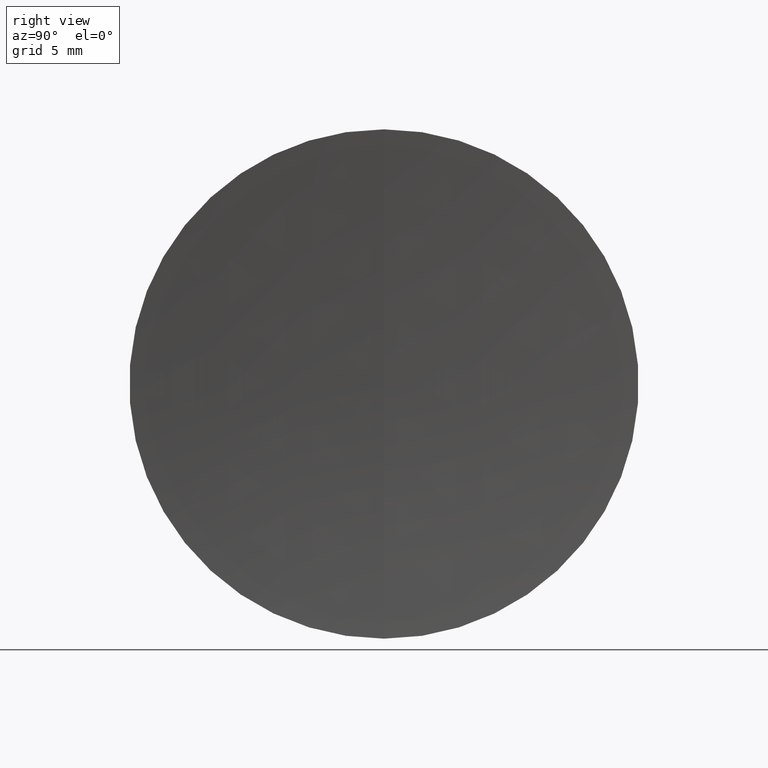
[diagram: clean part render]
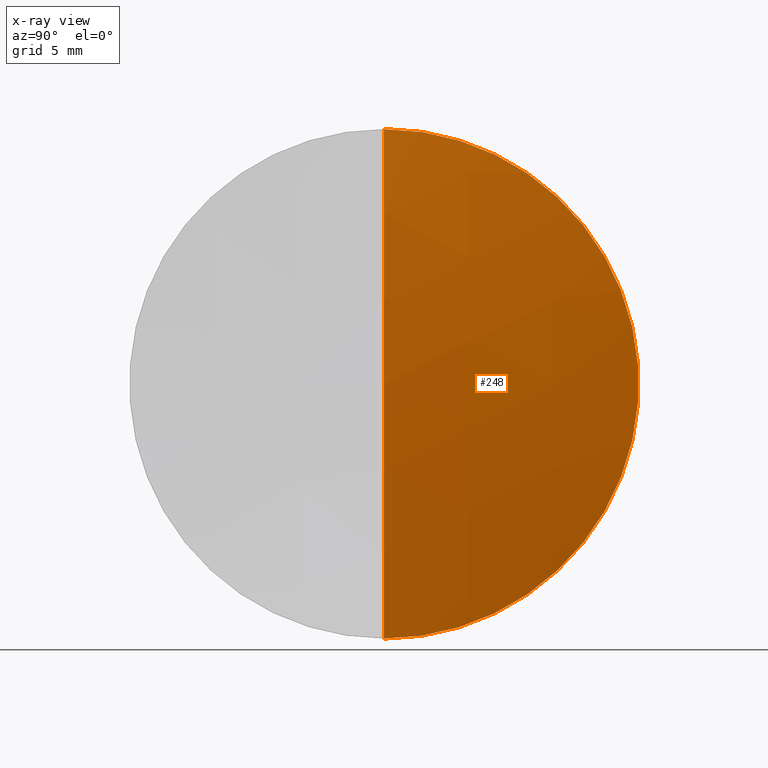
[diagram: x-ray — body ghosted, one internal face saturated and labeled with its STEP entity id]
A machine part, right view, then the same camera in x-ray: the body is ghosted and one INTERNAL B-rep face — a face not visible from any outside direction — is saturated and labeled: STEP entity #248.
In plain terms, the highlighted spherical surface has radius 77.4 mm.
Its self-contained STEP definition (entity closure, byte-faithful):
#2 = DIRECTION ( 'NONE',  ( 0.0000000000000000000, 0.0000000000000000000, 1.000000000000000000 ) ) ;
#10 = EDGE_CURVE ( 'NONE', #198, #57, #268, .T. ) ;
#14 = SPHERICAL_SURFACE ( 'NONE', #21, 77.40000000000002000 ) ;
#21 = AXIS2_PLACEMENT_3D ( 'NONE', #281, #246, #2 ) ;
#23 = DIRECTION ( 'NONE',  ( -0.0000000000000000000, 1.000000000000000000, 1.224646799147353200E-016 ) ) ;
#26 = CARTESIAN_POINT ( 'NONE',  ( 262.9404997922063700, 0.0000000000000000000, -2.808750536783838100E-013 ) ) ;
#41 = DIRECTION ( 'NONE',  ( 0.0000000000000000000, -1.000000000000000000, 0.0000000000000000000 ) ) ;
#44 = EDGE_CURVE ( 'NONE', #278, #198, #291, .T. ) ;
#50 = AXIS2_PLACEMENT_3D ( 'NONE', #26, #23, #122 ) ;
#57 = VERTEX_POINT ( 'NONE', #202 ) ;
#71 = CARTESIAN_POINT ( 'NONE',  ( 262.9404997922063700, 0.0000000000000000000, -2.808750536783838100E-013 ) ) ;
#72 = DIRECTION ( 'NONE',  ( 0.0000000000000000000, 0.0000000000000000000, -1.000000000000000000 ) ) ;
#83 = FACE_OUTER_BOUND ( 'NONE', #155, .T. ) ;
#97 = EDGE_CURVE ( 'NONE', #278, #57, #108, .T. ) ;
#103 = ORIENTED_EDGE ( 'NONE', *, *, #10, .F. ) ;
#108 = CIRCLE ( 'NONE', #50, 77.40000000000002000 ) ;
#109 = CARTESIAN_POINT ( 'NONE',  ( 340.3404997922064000, 0.0000000000000000000, -2.761356705656835500E-013 ) ) ;
#122 = DIRECTION ( 'NONE',  ( 0.0000000000000000000, -1.224646799147353200E-016, 1.000000000000000000 ) ) ;
#151 = DIRECTION ( 'NONE',  ( 0.0000000000000000000, 0.0000000000000000000, 1.000000000000000000 ) ) ;
#155 = EDGE_LOOP ( 'NONE', ( #320, #275, #103 ) ) ;
#198 = VERTEX_POINT ( 'NONE', #347 ) ;
#202 = CARTESIAN_POINT ( 'NONE',  ( 339.2914657323959800, 1.555301434917124800E-015, -12.69999999999988900 ) ) ;
#204 = AXIS2_PLACEMENT_3D ( 'NONE', #71, #41, #72 ) ;
#246 = DIRECTION ( 'NONE',  ( 0.0000000000000000000, 1.000000000000000000, 0.0000000000000000000 ) ) ;
#248 = ADVANCED_FACE ( 'NONE', ( #83 ), #14, .T. ) ;
#260 = CARTESIAN_POINT ( 'NONE',  ( 339.2914657323959800, 0.0000000000000000000, 0.0000000000000000000 ) ) ;
#267 = AXIS2_PLACEMENT_3D ( 'NONE', #260, #282, #151 ) ;
#268 = CIRCLE ( 'NONE', #267, 12.69999999999988700 ) ;
#275 = ORIENTED_EDGE ( 'NONE', *, *, #97, .T. ) ;
#278 = VERTEX_POINT ( 'NONE', #109 ) ;
#281 = CARTESIAN_POINT ( 'NONE',  ( 262.9404997922063700, 0.0000000000000000000, -2.808750536783838100E-013 ) ) ;
#282 = DIRECTION ( 'NONE',  ( -1.000000000000000000, -0.0000000000000000000, -0.0000000000000000000 ) ) ;
#291 = CIRCLE ( 'NONE', #204, 77.40000000000002000 ) ;
#320 = ORIENTED_EDGE ( 'NONE', *, *, #44, .F. ) ;
#347 = CARTESIAN_POINT ( 'NONE',  ( 339.2914657323959800, 0.0000000000000000000, 12.69999999999988700 ) ) ;